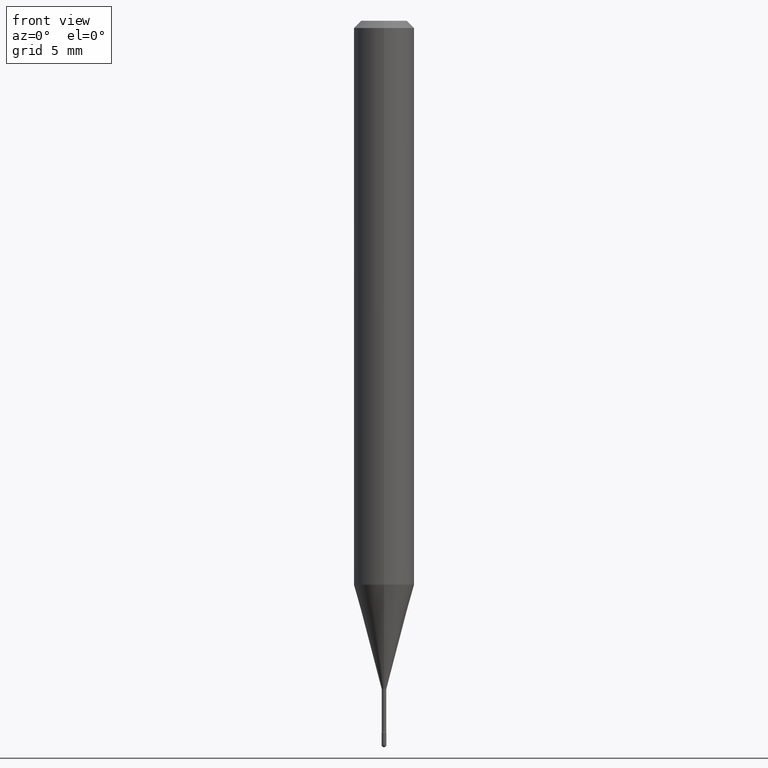
[diagram: clean part render]
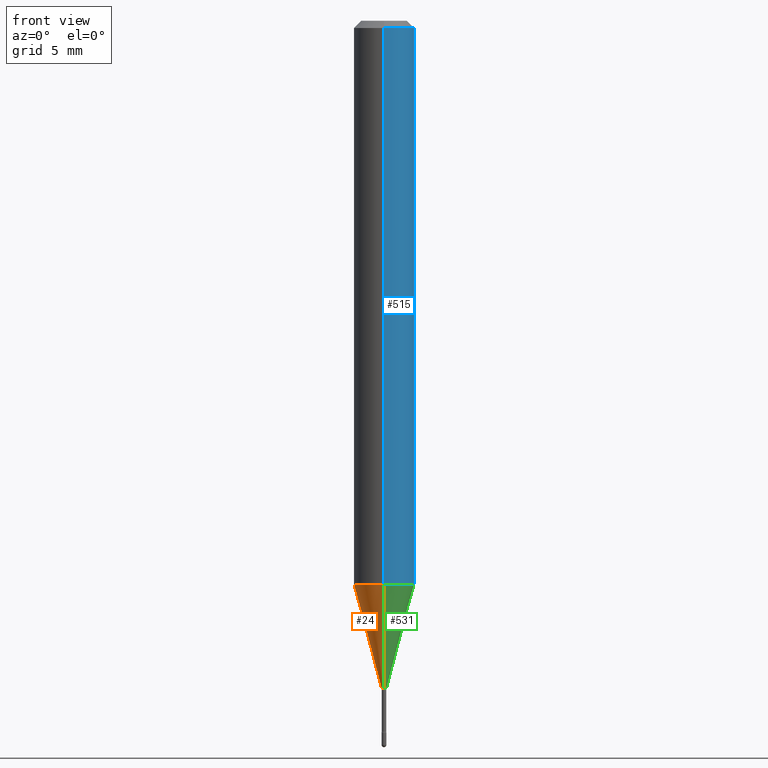
[diagram: same view with three faces highlighted in distinct colors, each labeled with its STEP entity id]
A machine part, front view with three faces highlighted in distinct colors.
Their STEP definitions:

[orange] entity #24 — the highlighted conical surface has half-angle 15 deg.
#14 = FACE_OUTER_BOUND ( 'NONE', #565, .T. ) ;
#24 = ADVANCED_FACE ( 'NONE', ( #14 ), #79, .T. ) ;
#64 = CARTESIAN_POINT ( 'NONE',  ( -3.638900483453828495E-17, -0.005211112605668789810, -1.378092501787273161 ) ) ;
#74 = ORIENTED_EDGE ( 'NONE', *, *, #472, .T. ) ;
#75 = LINE ( 'NONE', #64, #125 ) ;
#79 = CONICAL_SURFACE ( 'NONE', #422, 0.005211112605663980289, 0.2617993877991499629 ) ;
#84 = ORIENTED_EDGE ( 'NONE', *, *, #168, .T. ) ;
#93 = DIRECTION ( 'NONE',  ( -6.982962677686265922E-15, -1.000000000000000000, 0.000000000000000000 ) ) ;
#102 = ORIENTED_EDGE ( 'NONE', *, *, #166, .F. ) ;
#122 = VERTEX_POINT ( 'NONE', #464 ) ;
#125 = VECTOR ( 'NONE', #459, 39.37007874015748143 ) ;
#146 = DIRECTION ( 'NONE',  ( -2.446607092307177715E-29, 3.489851248329160132E-15, 1.000000000000000000 ) ) ;
#156 = DIRECTION ( 'NONE',  ( 1.839019923739597949E-15, 0.2588190451025246253, 0.9659258262890670910 ) ) ;
#166 = EDGE_CURVE ( 'NONE', #251, #267, #507, .T. ) ;
#168 = EDGE_CURVE ( 'NONE', #122, #465, #75, .T. ) ;
#178 = CARTESIAN_POINT ( 'NONE',  ( -4.364351673553631225E-16, -0.06250000000000406619, -1.164287463322519089 ) ) ;
#214 = ORIENTED_EDGE ( 'NONE', *, *, #271, .F. ) ;
#226 = DIRECTION ( 'NONE',  ( -6.982962677686265922E-15, -1.000000000000000000, 0.000000000000000000 ) ) ;
#251 = VERTEX_POINT ( 'NONE', #365 ) ;
#267 = VERTEX_POINT ( 'NONE', #417 ) ;
#271 = EDGE_CURVE ( 'NONE', #267, #465, #553, .T. ) ;
#283 = CARTESIAN_POINT ( 'NONE',  ( 2.848553965249208882E-29, -4.063190057290084953E-15, -1.164287463322519312 ) ) ;
#296 = VECTOR ( 'NONE', #156, 39.37007874015748854 ) ;
#305 = AXIS2_PLACEMENT_3D ( 'NONE', #283, #369, #547 ) ;
#320 = DIRECTION ( 'NONE',  ( -2.446607092307177715E-29, 3.489851248329160132E-15, 1.000000000000000000 ) ) ;
#352 = CARTESIAN_POINT ( 'NONE',  ( 3.371650888728085005E-29, -4.809337837675370251E-15, -1.378092501787273161 ) ) ;
#365 = CARTESIAN_POINT ( 'NONE',  ( 2.405581959609747133E-16, 0.005211112605659169901, -1.378092501787273161 ) ) ;
#369 = DIRECTION ( 'NONE',  ( -2.446607092307177715E-29, 3.489851248329160132E-15, 1.000000000000000000 ) ) ;
#385 = CIRCLE ( 'NONE', #404, 0.005211112605663980289 ) ;
#404 = AXIS2_PLACEMENT_3D ( 'NONE', #352, #146, #226 ) ;
#417 = CARTESIAN_POINT ( 'NONE',  ( 4.440892098500909166E-16, 0.06249999999999591993, -1.164287463322519756 ) ) ;
#422 = AXIS2_PLACEMENT_3D ( 'NONE', #541, #320, #93 ) ;
#459 = DIRECTION ( 'NONE',  ( -1.807323732225328167E-15, -0.2588190451025179084, 0.9659258262890690894 ) ) ;
#464 = CARTESIAN_POINT ( 'NONE',  ( -3.638900483453828495E-17, -0.005211112605668789810, -1.378092501787273161 ) ) ;
#465 = VERTEX_POINT ( 'NONE', #178 ) ;
#472 = EDGE_CURVE ( 'NONE', #251, #122, #385, .T. ) ;
#507 = LINE ( 'NONE', #543, #296 ) ;
#541 = CARTESIAN_POINT ( 'NONE',  ( 3.371650888728085005E-29, -4.809337837675370251E-15, -1.378092501787273161 ) ) ;
#543 = CARTESIAN_POINT ( 'NONE',  ( 3.702718207185799237E-17, 0.005211112605659169901, -1.378092501787273161 ) ) ;
#547 = DIRECTION ( 'NONE',  ( -6.982962677686265922E-15, -1.000000000000000000, 4.370956789862821150E-15 ) ) ;
#553 = CIRCLE ( 'NONE', #305, 0.06250000000000000000 ) ;
#565 = EDGE_LOOP ( 'NONE', ( #102, #74, #84, #214 ) ) ;

[blue] entity #515 — the highlighted cylindrical surface (edge-blend (fillet) strip) has radius 1.5875 mm, axis along (-0, 0, 1).
#6 = CARTESIAN_POINT ( 'NONE',  ( 2.848553965249208882E-29, -4.063190057290084953E-15, -1.164287463322519312 ) ) ;
#40 = AXIS2_PLACEMENT_3D ( 'NONE', #188, #356, #318 ) ;
#41 = VECTOR ( 'NONE', #559, 39.37007874015748143 ) ;
#49 = EDGE_CURVE ( 'NONE', #137, #339, #451, .T. ) ;
#66 = EDGE_CURVE ( 'NONE', #465, #267, #256, .T. ) ;
#80 = VECTOR ( 'NONE', #392, 39.37007874015748143 ) ;
#95 = CYLINDRICAL_SURFACE ( 'NONE', #554, 0.06250000000000000000 ) ;
#137 = VERTEX_POINT ( 'NONE', #505 ) ;
#163 = LINE ( 'NONE', #207, #41 ) ;
#178 = CARTESIAN_POINT ( 'NONE',  ( -4.364351673553631225E-16, -0.06250000000000406619, -1.164287463322519089 ) ) ;
#188 = CARTESIAN_POINT ( 'NONE',  ( 3.669910638460787013E-31, -5.234776872493768941E-17, -0.01500000000000008271 ) ) ;
#207 = CARTESIAN_POINT ( 'NONE',  ( -4.364351673553916201E-16, -0.06250000000000000000, 6.961891019118185468E-16 ) ) ;
#208 = ORIENTED_EDGE ( 'NONE', *, *, #491, .T. ) ;
#233 = DIRECTION ( 'NONE',  ( -2.446607092307177715E-29, 3.489851248329160132E-15, 1.000000000000000000 ) ) ;
#252 = ORIENTED_EDGE ( 'NONE', *, *, #49, .F. ) ;
#256 = CIRCLE ( 'NONE', #468, 0.06250000000000000000 ) ;
#260 = CARTESIAN_POINT ( 'NONE',  ( 4.440892098500913110E-16, 0.06249999999999995837, -0.01500000000000030129 ) ) ;
#267 = VERTEX_POINT ( 'NONE', #417 ) ;
#277 = CARTESIAN_POINT ( 'NONE',  ( 4.440892098500625669E-16, 0.06250000000000000000, 2.599576958706735797E-16 ) ) ;
#285 = EDGE_CURVE ( 'NONE', #465, #137, #163, .T. ) ;
#288 = ORIENTED_EDGE ( 'NONE', *, *, #285, .F. ) ;
#310 = DIRECTION ( 'NONE',  ( -6.982962677686265922E-15, -1.000000000000000000, 3.489851248329160132E-15 ) ) ;
#318 = DIRECTION ( 'NONE',  ( -6.982962677686265922E-15, -1.000000000000000000, 3.483106191921935554E-15 ) ) ;
#339 = VERTEX_POINT ( 'NONE', #260 ) ;
#341 = ORIENTED_EDGE ( 'NONE', *, *, #66, .T. ) ;
#356 = DIRECTION ( 'NONE',  ( -2.446607092307177715E-29, 3.489851248329160132E-15, 1.000000000000000000 ) ) ;
#392 = DIRECTION ( 'NONE',  ( -2.446607092307177715E-29, 3.489851248329160132E-15, 1.000000000000000000 ) ) ;
#398 = CARTESIAN_POINT ( 'NONE',  ( -1.169113584055446105E-44, 1.669184350826100908E-30, 4.780733988912460139E-16 ) ) ;
#417 = CARTESIAN_POINT ( 'NONE',  ( 4.440892098500909166E-16, 0.06249999999999591993, -1.164287463322519756 ) ) ;
#427 = EDGE_LOOP ( 'NONE', ( #341, #208, #252, #288 ) ) ;
#438 = FACE_OUTER_BOUND ( 'NONE', #427, .T. ) ;
#451 = CIRCLE ( 'NONE', #40, 0.06250000000000000000 ) ;
#465 = VERTEX_POINT ( 'NONE', #178 ) ;
#468 = AXIS2_PLACEMENT_3D ( 'NONE', #6, #233, #493 ) ;
#483 = LINE ( 'NONE', #277, #80 ) ;
#491 = EDGE_CURVE ( 'NONE', #267, #339, #483, .T. ) ;
#493 = DIRECTION ( 'NONE',  ( -6.982962677686265922E-15, -1.000000000000000000, 4.370956789862821150E-15 ) ) ;
#505 = CARTESIAN_POINT ( 'NONE',  ( -4.364351673553912750E-16, -0.06250000000000005551, -0.01499999999999986587 ) ) ;
#515 = ADVANCED_FACE ( 'NONE', ( #438 ), #95, .T. ) ;
#530 = DIRECTION ( 'NONE',  ( -2.446607092307177715E-29, 3.489851248329160132E-15, 1.000000000000000000 ) ) ;
#554 = AXIS2_PLACEMENT_3D ( 'NONE', #398, #530, #310 ) ;
#559 = DIRECTION ( 'NONE',  ( -2.446607092307177715E-29, 3.489851248329160132E-15, 1.000000000000000000 ) ) ;

[green] entity #531 — the highlighted conical surface has half-angle 15 deg.
#6 = CARTESIAN_POINT ( 'NONE',  ( 2.848553965249208882E-29, -4.063190057290084953E-15, -1.164287463322519312 ) ) ;
#32 = CONICAL_SURFACE ( 'NONE', #452, 0.005211112605663980289, 0.2617993877991499629 ) ;
#64 = CARTESIAN_POINT ( 'NONE',  ( -3.638900483453828495E-17, -0.005211112605668789810, -1.378092501787273161 ) ) ;
#66 = EDGE_CURVE ( 'NONE', #465, #267, #256, .T. ) ;
#75 = LINE ( 'NONE', #64, #125 ) ;
#92 = CARTESIAN_POINT ( 'NONE',  ( 3.371650888728085005E-29, -4.809337837675370251E-15, -1.378092501787273161 ) ) ;
#101 = FACE_OUTER_BOUND ( 'NONE', #299, .T. ) ;
#122 = VERTEX_POINT ( 'NONE', #464 ) ;
#125 = VECTOR ( 'NONE', #459, 39.37007874015748143 ) ;
#156 = DIRECTION ( 'NONE',  ( 1.839019923739597949E-15, 0.2588190451025246253, 0.9659258262890670910 ) ) ;
#166 = EDGE_CURVE ( 'NONE', #251, #267, #507, .T. ) ;
#167 = CARTESIAN_POINT ( 'NONE',  ( 3.371650888728085005E-29, -4.809337837675370251E-15, -1.378092501787273161 ) ) ;
#168 = EDGE_CURVE ( 'NONE', #122, #465, #75, .T. ) ;
#172 = ORIENTED_EDGE ( 'NONE', *, *, #168, .F. ) ;
#178 = CARTESIAN_POINT ( 'NONE',  ( -4.364351673553631225E-16, -0.06250000000000406619, -1.164287463322519089 ) ) ;
#204 = ORIENTED_EDGE ( 'NONE', *, *, #66, .F. ) ;
#233 = DIRECTION ( 'NONE',  ( -2.446607092307177715E-29, 3.489851248329160132E-15, 1.000000000000000000 ) ) ;
#251 = VERTEX_POINT ( 'NONE', #365 ) ;
#256 = CIRCLE ( 'NONE', #468, 0.06250000000000000000 ) ;
#267 = VERTEX_POINT ( 'NONE', #417 ) ;
#292 = EDGE_CURVE ( 'NONE', #122, #251, #395, .T. ) ;
#296 = VECTOR ( 'NONE', #156, 39.37007874015748854 ) ;
#298 = DIRECTION ( 'NONE',  ( -2.446607092307177715E-29, 3.489851248329160132E-15, 1.000000000000000000 ) ) ;
#299 = EDGE_LOOP ( 'NONE', ( #484, #344, #204, #172 ) ) ;
#300 = DIRECTION ( 'NONE',  ( -6.982962677686265922E-15, -1.000000000000000000, 0.000000000000000000 ) ) ;
#344 = ORIENTED_EDGE ( 'NONE', *, *, #166, .T. ) ;
#365 = CARTESIAN_POINT ( 'NONE',  ( 2.405581959609747133E-16, 0.005211112605659169901, -1.378092501787273161 ) ) ;
#395 = CIRCLE ( 'NONE', #520, 0.005211112605663980289 ) ;
#400 = DIRECTION ( 'NONE',  ( -2.446607092307177715E-29, 3.489851248329160132E-15, 1.000000000000000000 ) ) ;
#417 = CARTESIAN_POINT ( 'NONE',  ( 4.440892098500909166E-16, 0.06249999999999591993, -1.164287463322519756 ) ) ;
#452 = AXIS2_PLACEMENT_3D ( 'NONE', #92, #400, #485 ) ;
#459 = DIRECTION ( 'NONE',  ( -1.807323732225328167E-15, -0.2588190451025179084, 0.9659258262890690894 ) ) ;
#464 = CARTESIAN_POINT ( 'NONE',  ( -3.638900483453828495E-17, -0.005211112605668789810, -1.378092501787273161 ) ) ;
#465 = VERTEX_POINT ( 'NONE', #178 ) ;
#468 = AXIS2_PLACEMENT_3D ( 'NONE', #6, #233, #493 ) ;
#484 = ORIENTED_EDGE ( 'NONE', *, *, #292, .T. ) ;
#485 = DIRECTION ( 'NONE',  ( -6.982962677686265922E-15, -1.000000000000000000, 0.000000000000000000 ) ) ;
#493 = DIRECTION ( 'NONE',  ( -6.982962677686265922E-15, -1.000000000000000000, 4.370956789862821150E-15 ) ) ;
#507 = LINE ( 'NONE', #543, #296 ) ;
#520 = AXIS2_PLACEMENT_3D ( 'NONE', #167, #298, #300 ) ;
#531 = ADVANCED_FACE ( 'NONE', ( #101 ), #32, .T. ) ;
#543 = CARTESIAN_POINT ( 'NONE',  ( 3.702718207185799237E-17, 0.005211112605659169901, -1.378092501787273161 ) ) ;